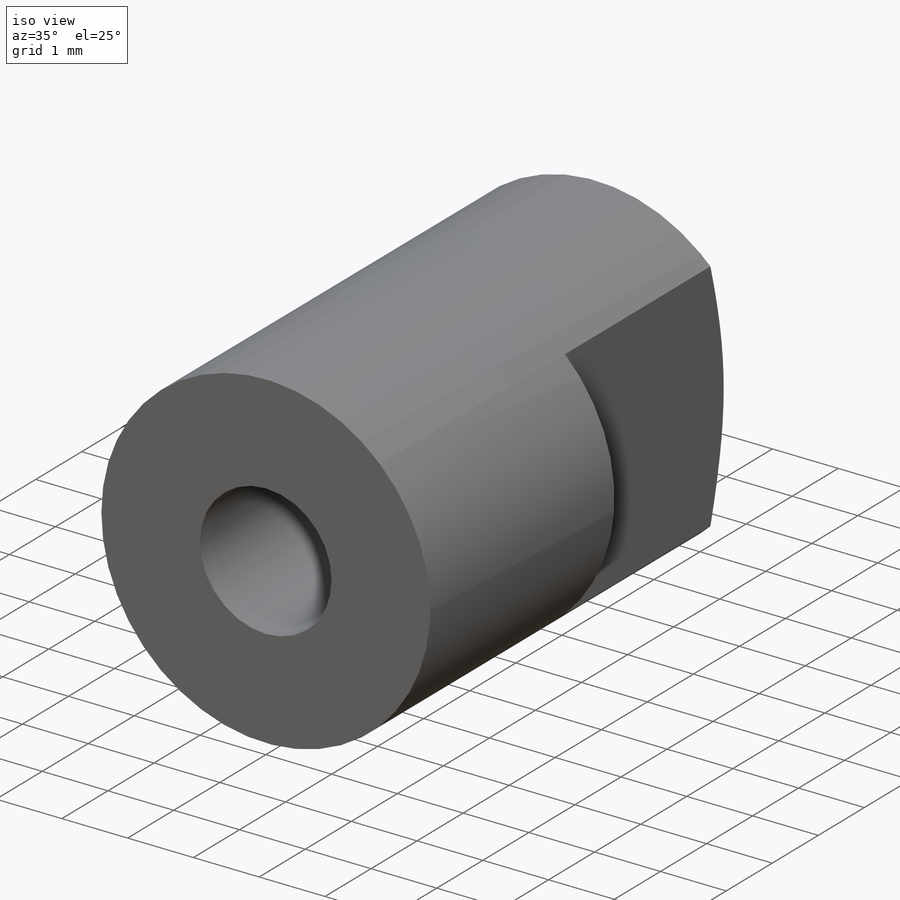
[diagram: iso view]
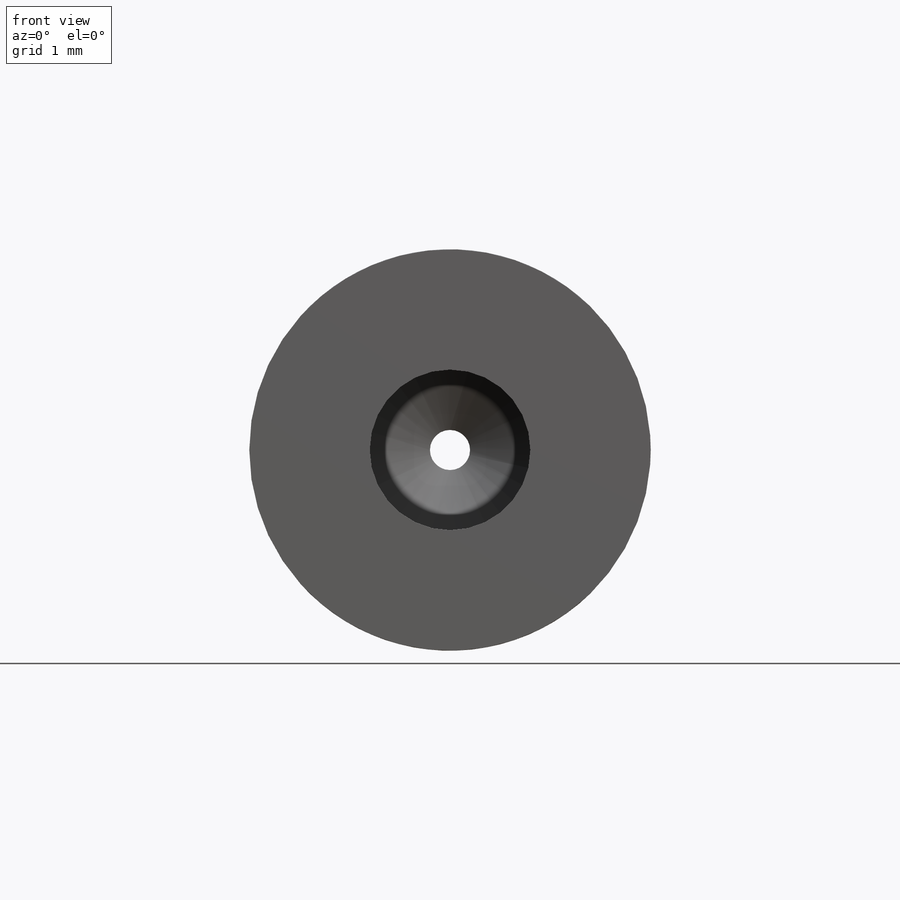
[diagram: front view]
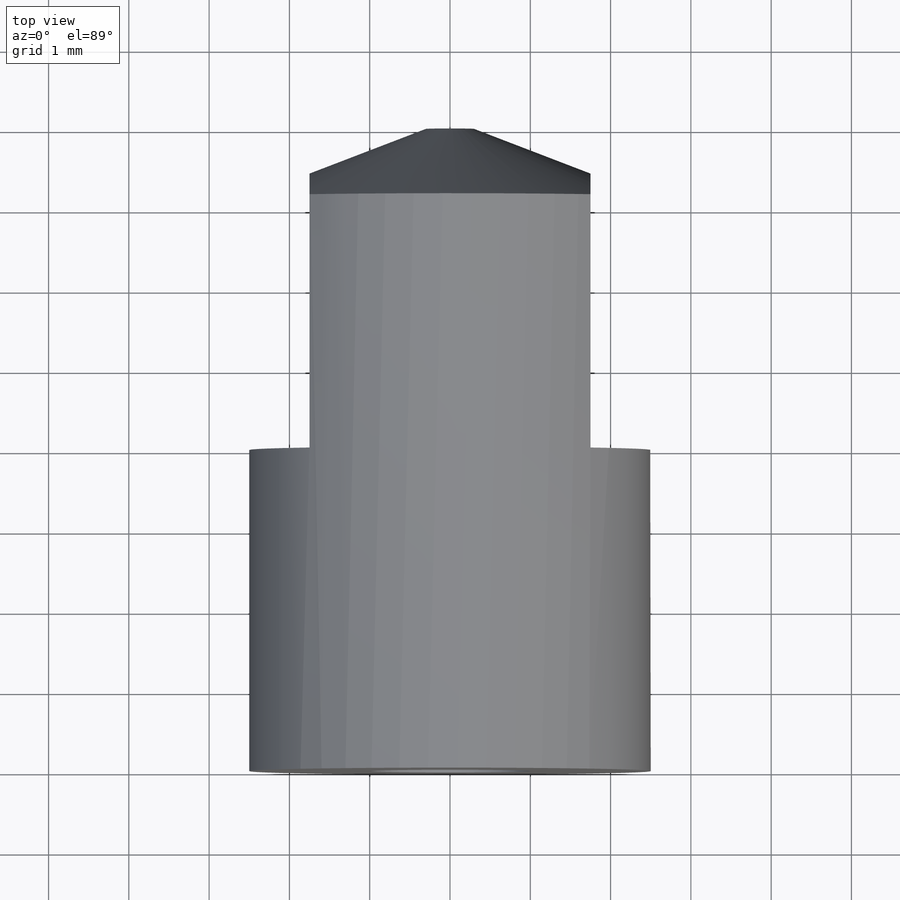
[diagram: top view]
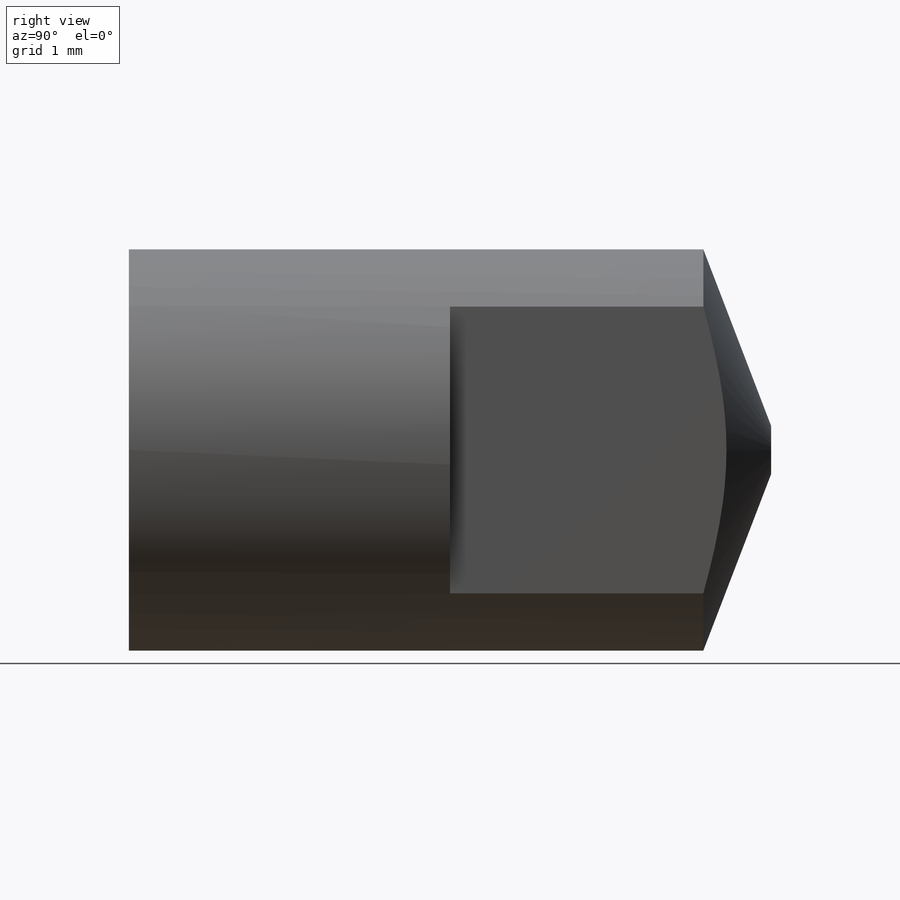
[diagram: right view]
SOLIDWORKS PART (.sldprt)
format: sldprt  version: not decoded by parser v0  size: 187,904 bytes
history: native  units: mm
features: sketch x5, cut_extrude x2, material x1, extrude x1, thread x1, plane x1, chamfer x1, mirror x1, hole x1 (+16 scaffold rows collapsed)
feature tree (30):
  scaffold x16  (default folders/planes/origin — collapsed)
  material  "Material <not specified>"
  sketch  "Sketch1"  dims[D1=5.0mm]
  extrude  "Boss-Extrude1"  [1 undecoded]
  thread  "Cosmetic Thread1"  Diameter=4.11mm  [1 undecoded]
  plane  "Plane1"  Offset=0.8mm
  sketch  "Sketch6"  dims[D1=0.5mm]
  cut_extrude  "Cut-Extrude1"  Depth=1mm
  chamfer  "Chamfer1"  Distance=2.2mm Angle=21deg
  sketch  "Sketch7"  dims[D1=1.75mm D2=4.0mm]
  cut_extrude  "Cut-Extrude2"  Depth=5mm
  mirror  "Mirror1"
  hole  "Ø2.0 (2) Diameter Hole1"  Diameter=2mm Depth=7.05mm
  sketch  "Sketch9"
  sketch  "Sketch8"  dims[hole-wizard template sketch: 47 standard entries collapsed; hole parameters kept: c15.Hole Depth=7.05mm c15.D3=~14.816244mm c15.Drill Angle=118.0deg]
decode coverage: 9 of 12 modeling features carry decoded parameters
note: ~ marks probable driven/reference dimensions
note: 2 parameter values undecoded
note: suppression state not decoded; provenance and decode notes live in map.json
